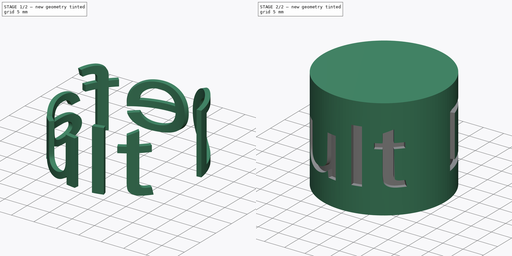
[diagram: build sequence overview — one tinted view per stage of 2, left to right]
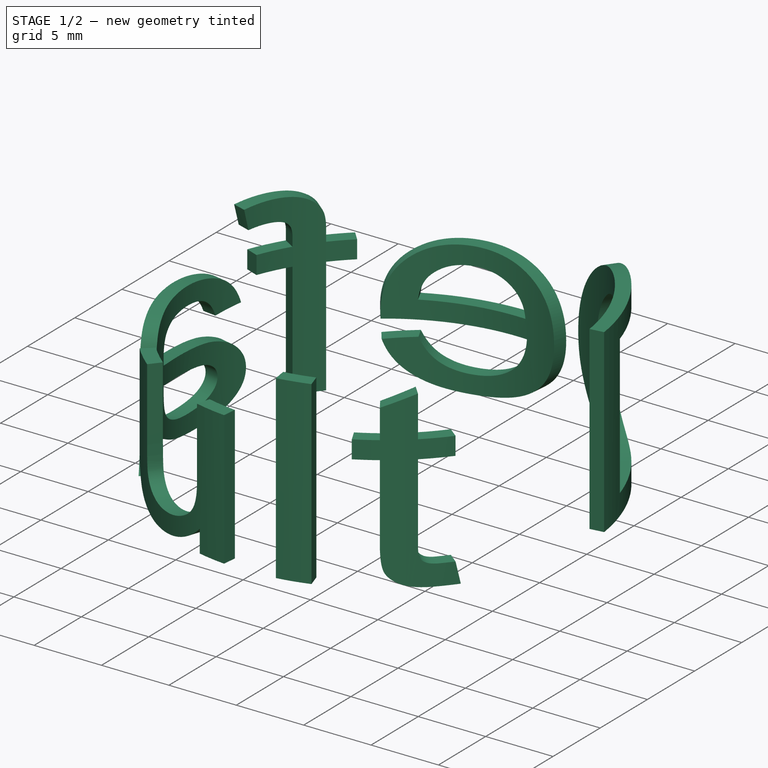
[diagram: stage 1 of 2 — iso view after this stage's code; geometry added in this stage tinted green]
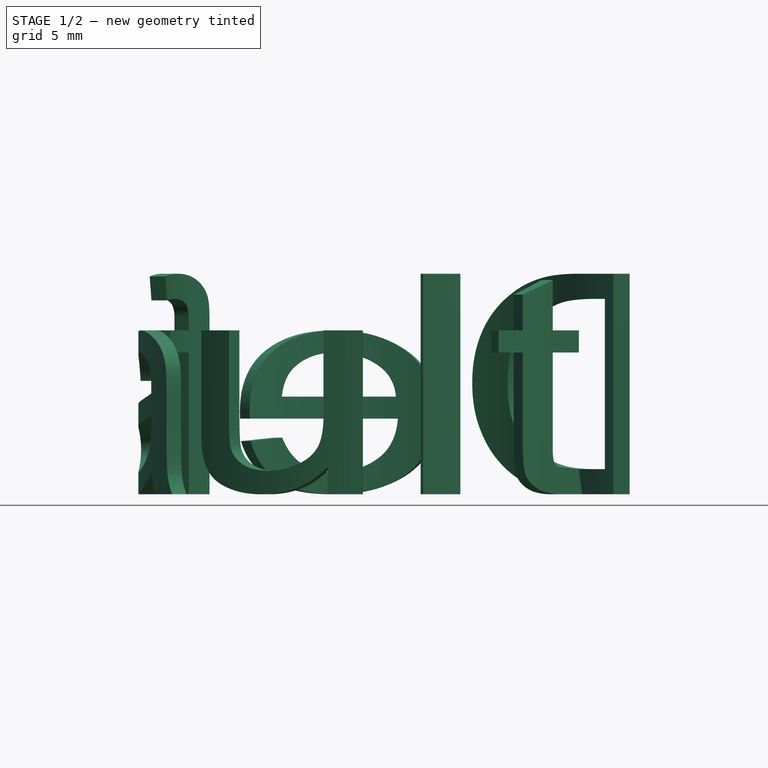
[diagram: stage 1 of 2 — front view after this stage's code; geometry added in this stage tinted green]
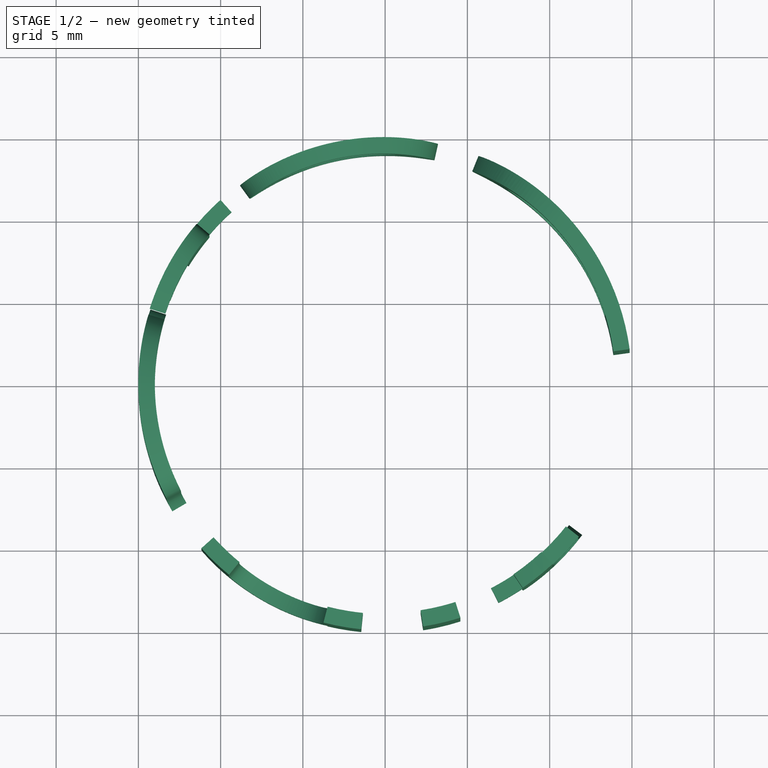
[diagram: stage 1 of 2 — top view after this stage's code; geometry added in this stage tinted green]
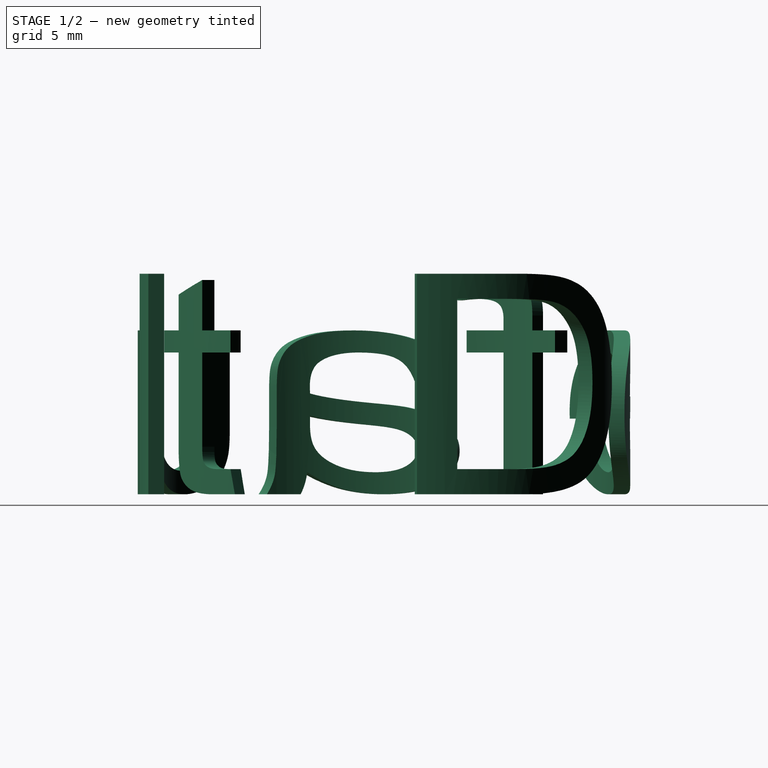
[diagram: stage 1 of 2 — right view after this stage's code; geometry added in this stage tinted green]
FCSTD DOCUMENT  (FreeCAD 0.20R25997 (Git))
Label: pdwrapper_curves_sketch_on_surface_example
License: All rights reserved
LicenseURL: http://en.wikipedia.org/wiki/All_rights_reserved
objects: PartDesign::AdditiveCylinder×1, Sketcher::SketchObject×1, Part::Part2DObjectPython×1, Part::FeaturePython×1, PartDesign::FeatureSubtractivePython×1, PartDesign::Body×1
note: 8 computed .brp shape members not serialized (recipe doc carries the construction recipe); baked Part::Feature solids carry a one-line shape summary decoded from their .brp

FEATURE [PartDesign::AdditiveCylinder] Cylinder001
  Angle = 360
  AttacherType = Attacher::AttachEngine3D
  FirstAngle = 0
  Height = 25
  Radius = 15
  SecondAngle = 0
FEATURE [Sketcher::SketchObject] Mapped_Sketch
  FullyConstrained = false
  MapMode = 45
  Placement = pos=(-1.8e-15,-2e-16,12.5) rot=(0,0,1;0rad)
  Support = -> [Cylinder001]
  sketch-geometry (4):
    g0: LineSegment StartX=0 StartY=-4.3279 StartZ=0 EndX=46.3391 EndY=-4.3279 EndZ=0
    g1: LineSegment StartX=46.3391 StartY=-4.3279 StartZ=0 EndX=46.3391 EndY=13.4055 EndZ=0
    g2: LineSegment StartX=46.3391 StartY=13.4055 StartZ=0 EndX=0 EndY=13.4055 EndZ=0
    g3: LineSegment StartX=0 StartY=13.4055 StartZ=0 EndX=0 EndY=-4.3279 EndZ=0
  constraints (9):
    c: Coincident(g0,g1)
    c: Coincident(g1,g2)
    c: Coincident(g2,g3)
    c: Coincident(g3,g0)
    c: Horizontal(g0)
    c: Horizontal(g2)
    c: Vertical(g1)
    c: Vertical(g3)
    c: DistanceX(g0,g-1) = 0
FEATURE [Part::Part2DObjectPython] ShapeString  # Draft 2D object (typed FeaturePython)
  FontFile = <path>
  MakeFace = true
  Size = 10
  String = Default
  Tracking = 0
FEATURE [Part::FeaturePython] Sketch_On_Surface  # WARN: FeaturePython — macro-defined, semantics opaque (R4)
  ConstructionBounds = true
  ExtraObjects = -> [ShapeString]
  FillExtrusion = true
  FillFaces = true
  ReverseU = false
  ReverseV = true
  Sketch = -> Mapped_Sketch
  SwapUV = false
  Thickness = -1
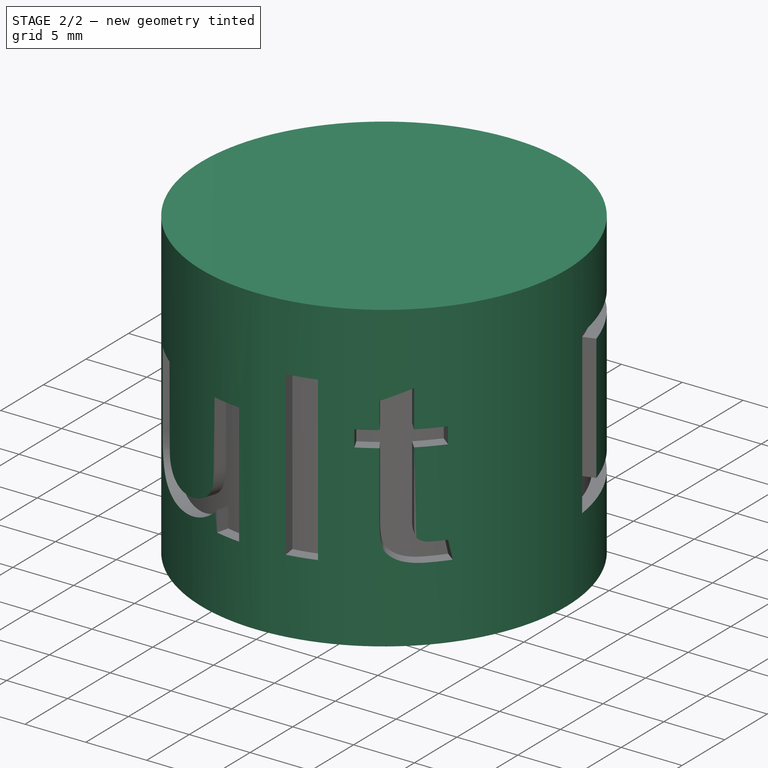
[diagram: stage 2 of 2 — iso view after this stage's code; geometry added in this stage tinted green]
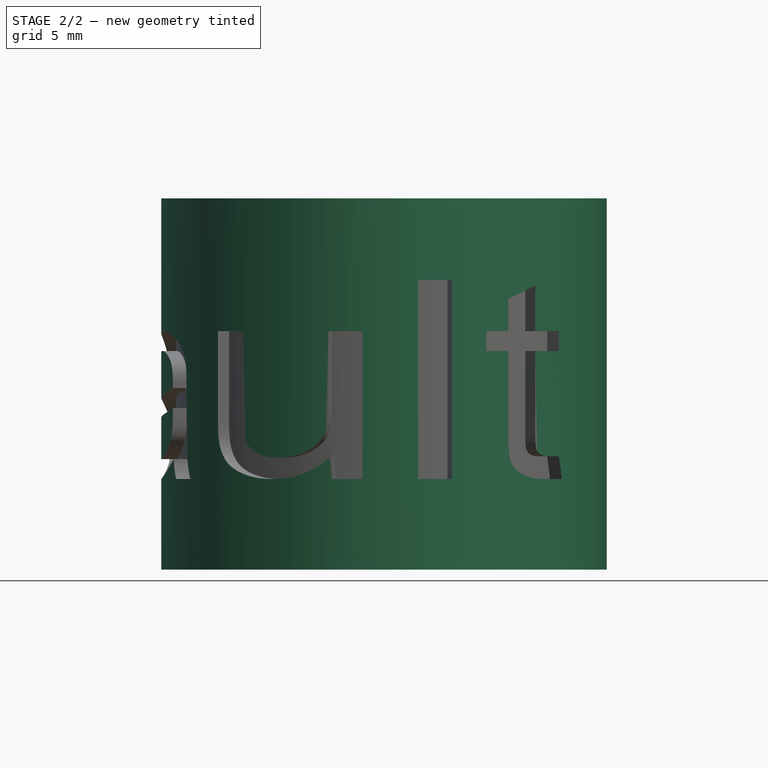
[diagram: stage 2 of 2 — front view after this stage's code; geometry added in this stage tinted green]
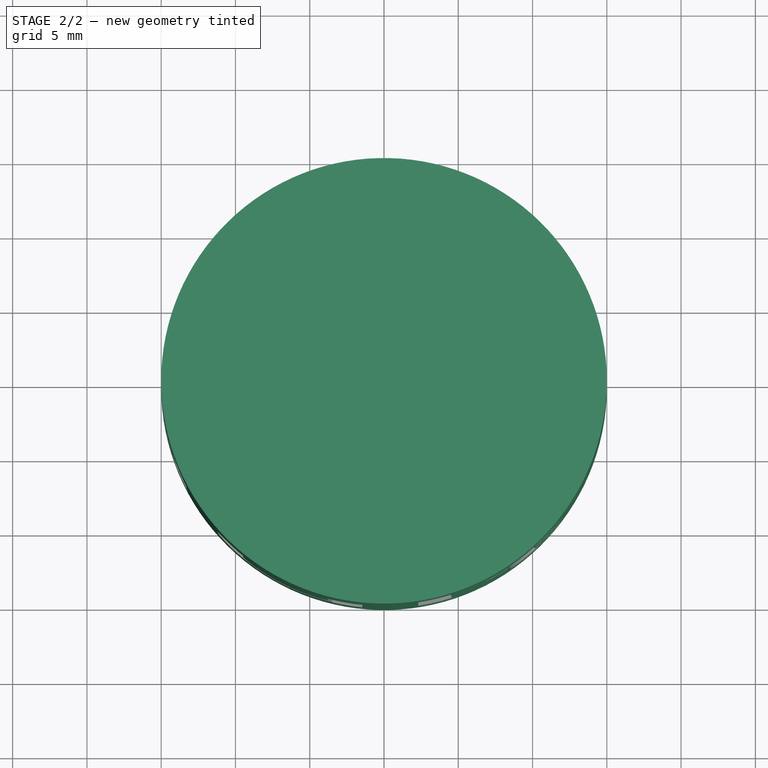
[diagram: stage 2 of 2 — top view after this stage's code; geometry added in this stage tinted green]
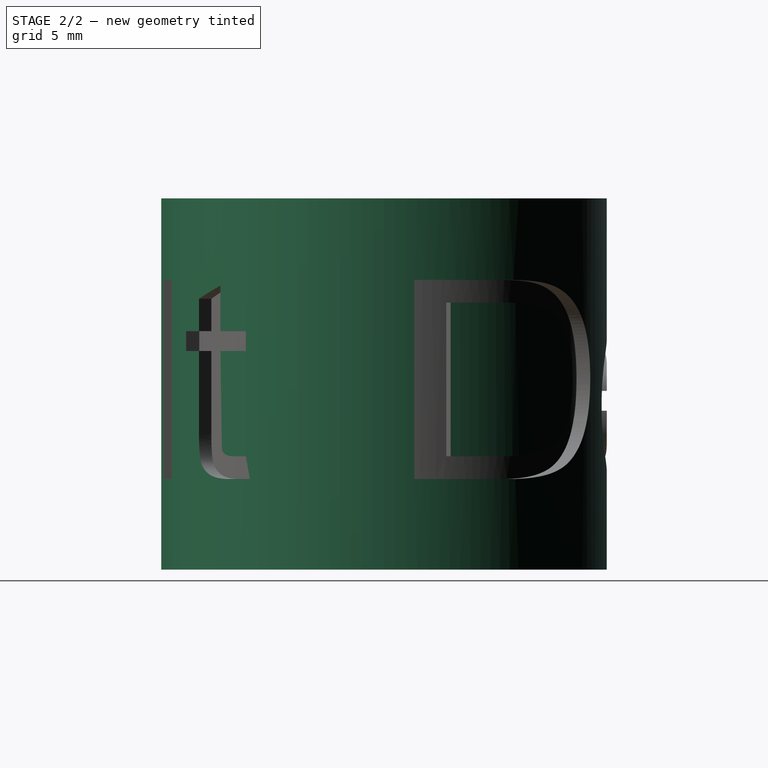
[diagram: stage 2 of 2 — right view after this stage's code; geometry added in this stage tinted green]
FEATURE [PartDesign::FeatureSubtractivePython] PDW_Sub  # link proxy (typed FeaturePython)
  BaseFeature = -> Cylinder001
  Body = Body
  ClaimChildren = true
  EditPlacementAdjustments = false
  Enabled = 1
  LinkedObject = -> Sketch_On_Surface
  MeshTolerance = 0.1
  PatternBase = -> Sketch_On_Surface
  PatternBaseOffset = 0
  PatternBaseScale = 1
  PatternOffsetCut = false
  PatternOffsetJoin = 0
  PatternOffsetMode = 0
  PatternOperation = 0
  PatternOperationDefault = None
  PatternScaleCut = false
  PatternShapeOffset = 0
  PatternShapeScale = 1
  PatternToolOffset = 0
  PatternToolScale = 1
  RefineMesh = true
  ShapeManagement = 0
  ShowMeshProps = false
  ShowOffsetProps = false
  ShowScaleProps = false
  ShowWarnings = true
  TipBase = -> Cylinder001
  TipBaseOffset = 0
  TipBaseScale = 1
  TipOffsetCut = false
  TipOffsetJoin = 0
  TipOffsetMode = 0
  TipOperation = 1
  TipOperationDefault = Cut
  TipScaleCut = false
  TipShapeOffset = 0
  TipShapeScale = 1
  TipTool = -> Sketch_On_Surface
  TipToolOffset = 0
  TipToolScale = 1
  Type = Subtractive
  UsePatternBaseAddSubShape = false
  UsePatternToolAddSubShape = false
  UseTipBaseAddSubShape = false
  UseTipToolAddSubShape = false
  Version = 0.2021.10.15
FEATURE [PartDesign::Body] Body
  Group = -> [Cylinder001,PDW_Sub,Mapped_Sketch,ShapeString,Sketch_On_Surface]
  Origin = -> Origin
  Tip = -> PDW_Sub
note: 1 file-system path scrubbed to <path> (originals preserved in the JSON sidecar)
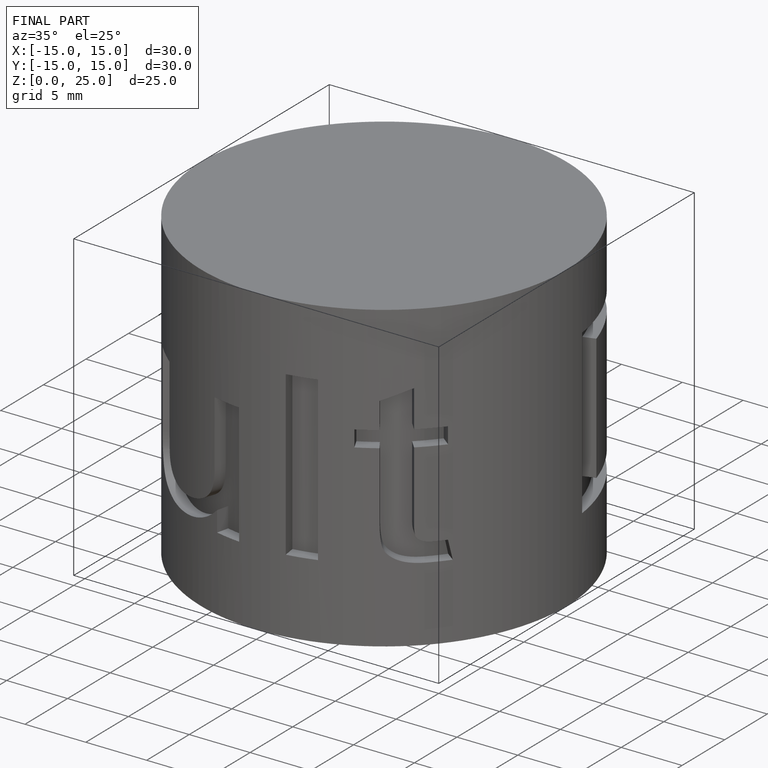
[diagram: finished part — iso view with bounding-box wireframe]
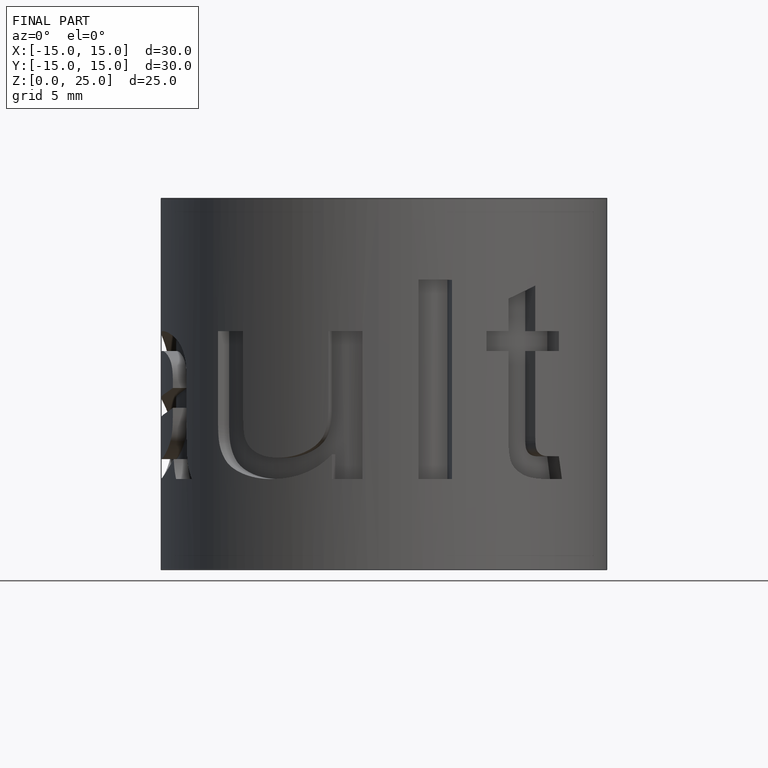
[diagram: finished part — front view with bounding-box wireframe]
